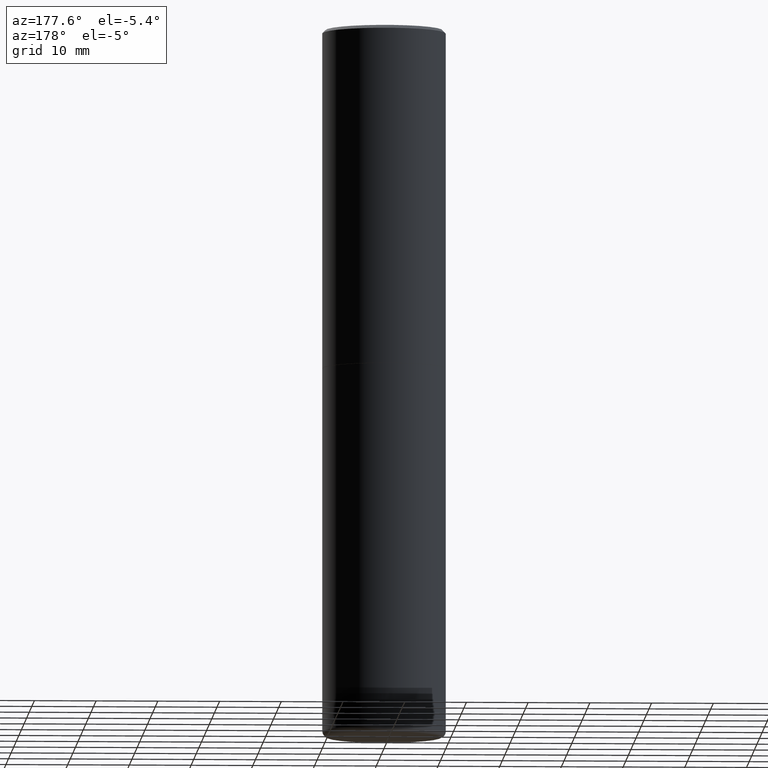
[diagram: clean part render]
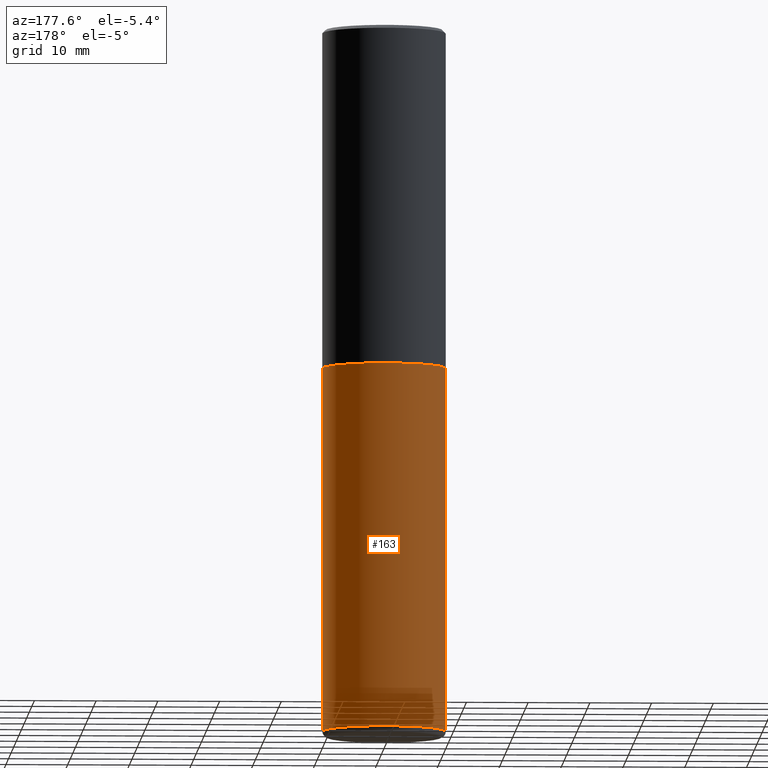
[diagram: same view with one face highlighted and labeled with its STEP entity id]
A machine part, auxiliary view. The second image highlights one B-rep face of the part: STEP entity #163.
In plain terms, the highlighted cylindrical surface (partial cylindrical patch) has radius 10 mm, axis along (-0, 0, 1).
Its self-contained STEP definition (entity closure, byte-faithful):
#4 = CARTESIAN_POINT ( 'NONE',  ( 0.3937000000000001054, -1.841965895120088790E-14, -4.488199999999999079 ) ) ;
#9 = VECTOR ( 'NONE', #87, 39.37007874015748143 ) ;
#14 = ORIENTED_EDGE ( 'NONE', *, *, #314, .T. ) ;
#32 = CARTESIAN_POINT ( 'NONE',  ( 5.295418152913293224E-29, -7.560453691130945845E-15, -2.165399999999999547 ) ) ;
#43 = DIRECTION ( 'NONE',  ( -2.445468806185136597E-29, 3.491481338843145583E-15, 1.000000000000000000 ) ) ;
#51 = VECTOR ( 'NONE', #170, 39.37007874015748143 ) ;
#61 = DIRECTION ( 'NONE',  ( -2.445468806185136597E-29, 3.491481338843145583E-15, 1.000000000000000000 ) ) ;
#70 = ORIENTED_EDGE ( 'NONE', *, *, #409, .T. ) ;
#71 = FACE_OUTER_BOUND ( 'NONE', #228, .T. ) ;
#83 = ORIENTED_EDGE ( 'NONE', *, *, #179, .F. ) ;
#87 = DIRECTION ( 'NONE',  ( -2.445468806185136877E-29, 3.491481338843145188E-15, 1.000000000000000000 ) ) ;
#89 = AXIS2_PLACEMENT_3D ( 'NONE', #361, #231, #396 ) ;
#90 = EDGE_CURVE ( 'NONE', #233, #406, #326, .T. ) ;
#93 = CARTESIAN_POINT ( 'NONE',  ( -0.3937000000000001054, -1.287305979430828910E-14, -4.488199999999999079 ) ) ;
#103 = CYLINDRICAL_SURFACE ( 'NONE', #89, 0.3937000000000000499 ) ;
#137 = VERTEX_POINT ( 'NONE', #200 ) ;
#144 = VERTEX_POINT ( 'NONE', #93 ) ;
#147 = CIRCLE ( 'NONE', #374, 0.3937000000000000499 ) ;
#163 = ADVANCED_FACE ( 'NONE', ( #71 ), #103, .T. ) ;
#170 = DIRECTION ( 'NONE',  ( -2.445468806185136877E-29, 3.491481338843145188E-15, 1.000000000000000000 ) ) ;
#179 = EDGE_CURVE ( 'NONE', #406, #137, #147, .T. ) ;
#181 = CARTESIAN_POINT ( 'NONE',  ( 0.3937000000000000499, -1.030964609733602906E-14, -2.165399999999999547 ) ) ;
#200 = CARTESIAN_POINT ( 'NONE',  ( -0.3937000000000000499, -8.818053367375859687E-15, -2.165399999999999547 ) ) ;
#208 = CARTESIAN_POINT ( 'NONE',  ( 1.097575309592012950E-28, -1.567046654499580152E-14, -4.488199999999999079 ) ) ;
#220 = AXIS2_PLACEMENT_3D ( 'NONE', #208, #43, #312 ) ;
#228 = EDGE_LOOP ( 'NONE', ( #70, #14, #83, #304 ) ) ;
#231 = DIRECTION ( 'NONE',  ( -2.445468806185136597E-29, 3.491481338843145583E-15, 1.000000000000000000 ) ) ;
#233 = VERTEX_POINT ( 'NONE', #4 ) ;
#303 = LINE ( 'NONE', #379, #51 ) ;
#304 = ORIENTED_EDGE ( 'NONE', *, *, #90, .F. ) ;
#312 = DIRECTION ( 'NONE',  ( 1.000000000000000000, -6.982962677686262766E-15, 0.000000000000000000 ) ) ;
#314 = EDGE_CURVE ( 'NONE', #144, #137, #303, .T. ) ;
#321 = CIRCLE ( 'NONE', #220, 0.3937000000000000499 ) ;
#326 = LINE ( 'NONE', #350, #9 ) ;
#350 = CARTESIAN_POINT ( 'NONE',  ( 0.3937000000000000499, -2.749192406205083217E-15, 1.919750796630860172E-29 ) ) ;
#361 = CARTESIAN_POINT ( 'NONE',  ( 0.000000000000000000, 0.000000000000000000, 0.000000000000000000 ) ) ;
#364 = DIRECTION ( 'NONE',  ( 1.000000000000000000, -6.982962677686265133E-15, 0.000000000000000000 ) ) ;
#374 = AXIS2_PLACEMENT_3D ( 'NONE', #32, #61, #364 ) ;
#379 = CARTESIAN_POINT ( 'NONE',  ( -0.3937000000000000499, 2.797406750687514786E-15, -1.936584745033356735E-29 ) ) ;
#396 = DIRECTION ( 'NONE',  ( 1.000000000000000000, -6.982962677686265922E-15, 4.876176775795935793E-29 ) ) ;
#406 = VERTEX_POINT ( 'NONE', #181 ) ;
#409 = EDGE_CURVE ( 'NONE', #233, #144, #321, .T. ) ;